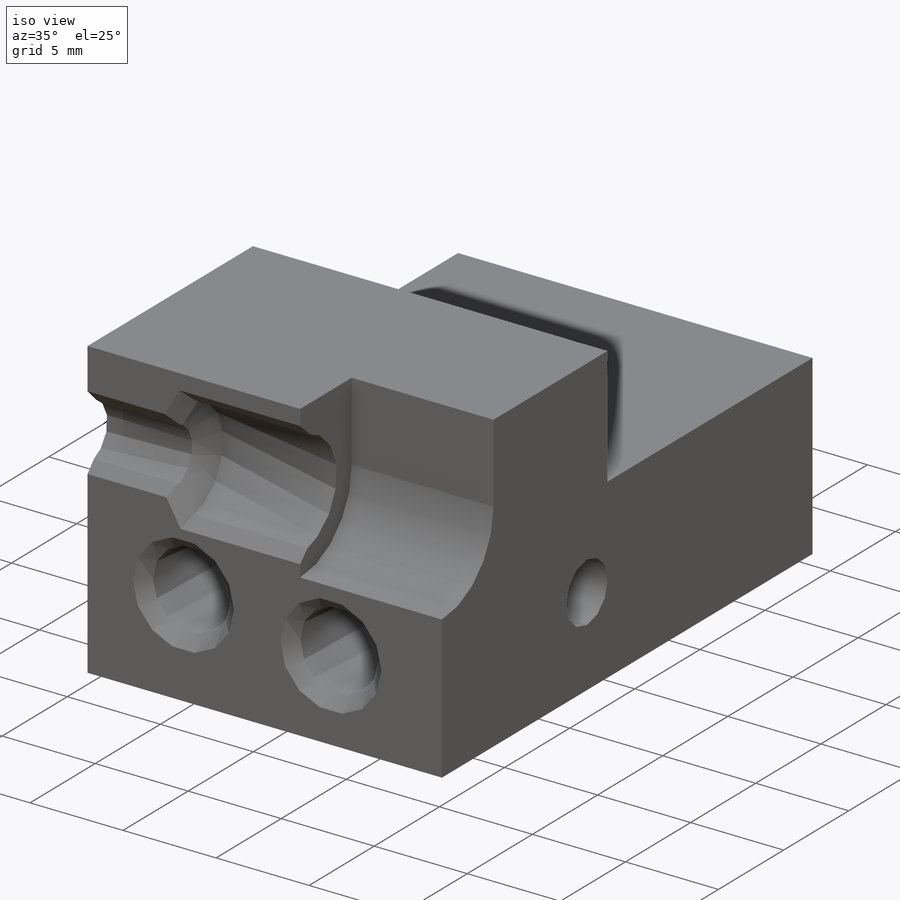
[diagram: iso view]
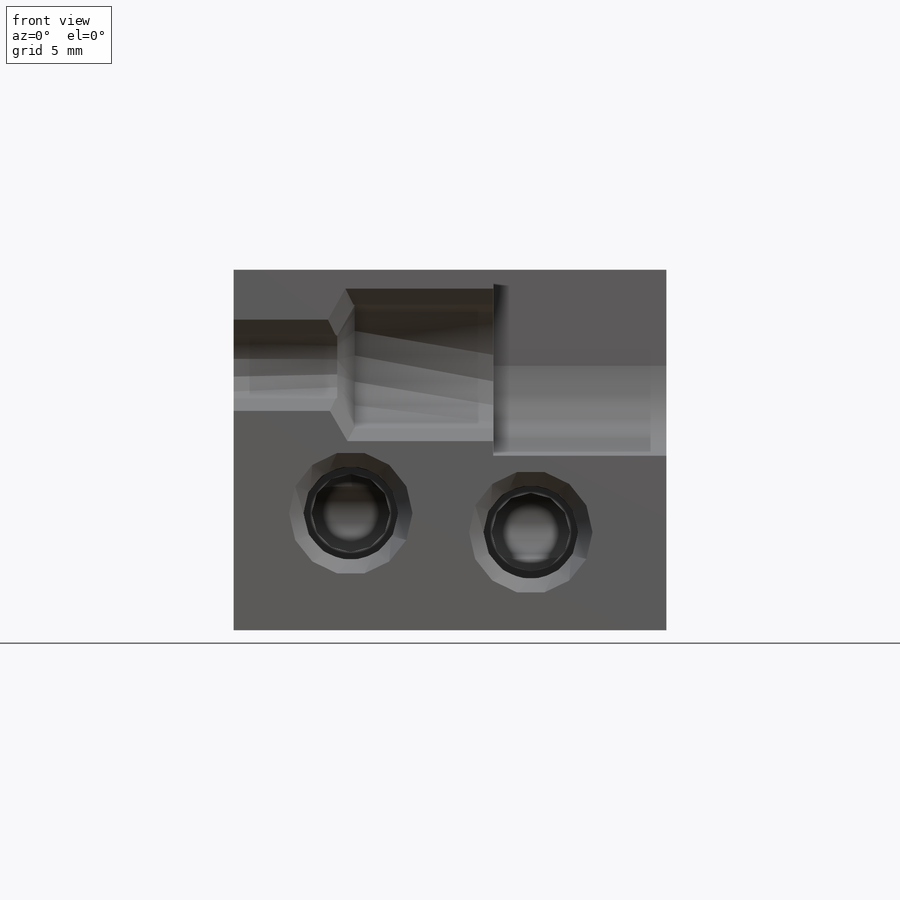
[diagram: front view]
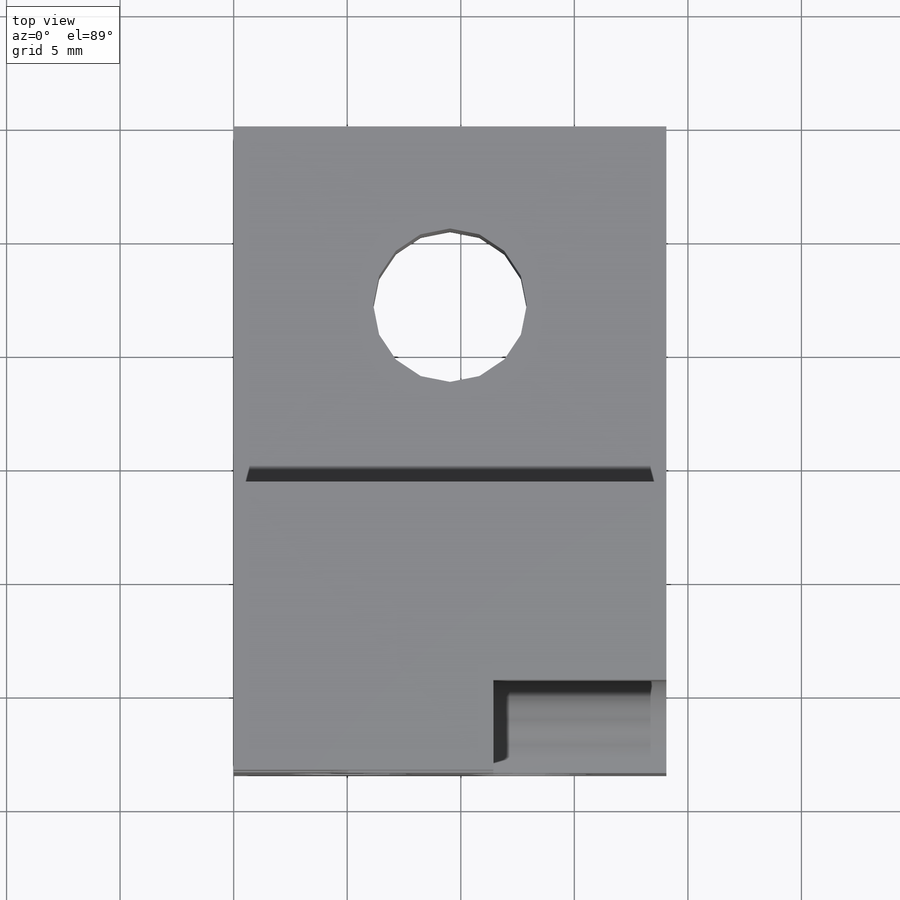
[diagram: top view]
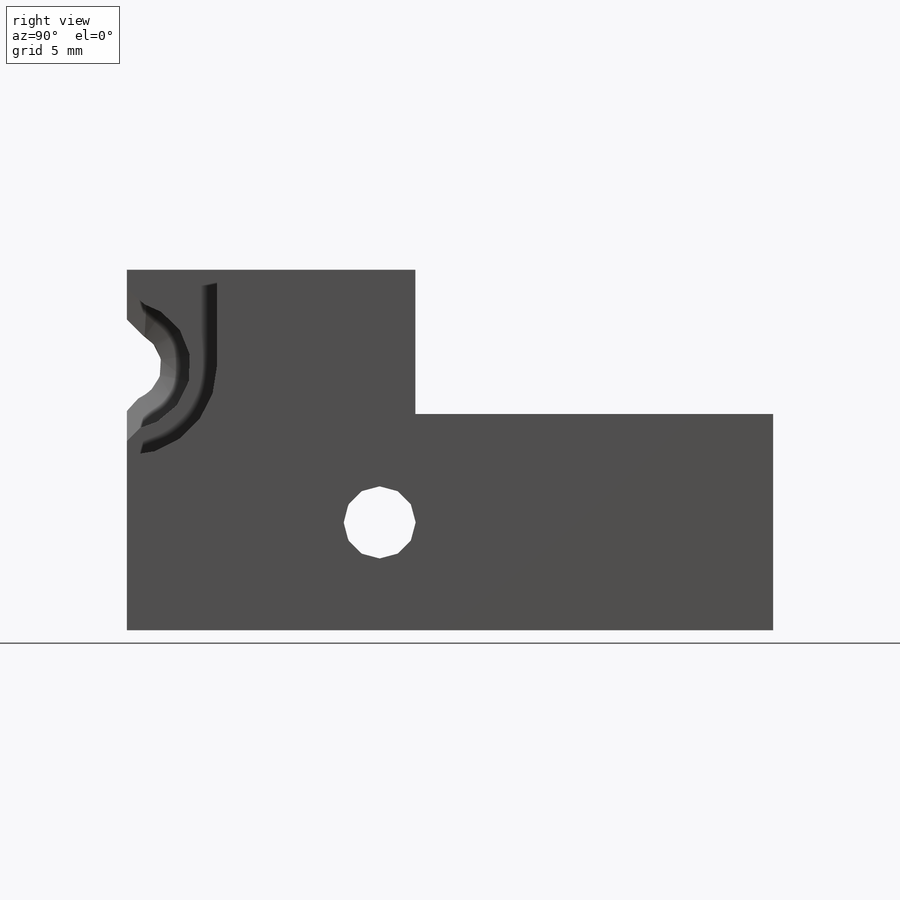
[diagram: right view]
SOLIDWORKS PART (.sldprt)
format: sldprt  version: not decoded by parser v0  size: 390,144 bytes
history: native  units: mm
features: sketch x14, hole x5, cut_extrude x2, material x1, extrude x1, chamfer x1 + 1 further entry (+13 scaffold rows collapsed)
feature tree (38):
  scaffold x13  (default folders/planes/origin — collapsed)
  material  "PEEK"
  "Origin"  ID=-1
  sketch  "Sketch1"  dims[D1=19.05mm D2=15.875mm]
  extrude  "Boss-Extrude1"  Depth=28.448mm
  hole  "#31 (0.12) Diameter Hole1"  Diameter=3.048mm Depth=19.05mm
  sketch  "Sketch3"  dims[D1=~4.22948mm]
  sketch  "Sketch2"  dims[hole-wizard template sketch: 60 standard entries collapsed; hole parameters kept: c18.Thru Hole Depth=19.05mm]
  sketch  "Sketch5"  dims[c1.D1=0.635mm c1.D2=0.635mm c1.D4=0.635mm c1.D5=0.635mm c2.D5=72.0deg c2.D3=5.0]
  sketch  "Sketch6"  dims[D1=15.748mm D2=6.35mm]
  cut_extrude  "Cut-Extrude1"  [1 undecoded]
  hole  "H (0.266) Diameter Hole1"  Diameter=6.7564mm Depth=9.525mm
  sketch  "Sketch8"  dims[D1=20.574mm]
  sketch  "Sketch7"  dims[hole-wizard template sketch: 60 standard entries collapsed; hole parameters kept: c18.Thru Hole Depth=9.525mm]
  sketch  "Sketch9"  dims[D1=7.9248mm]
  cut_extrude  "Cut-Extrude2"  Depth=7.62mm
  hole  "#2 (0.221) Diameter Hole1"  Diameter=5.6134mm Depth=6.096mm
  sketch  "Sketch11"
  sketch  "Sketch10"  dims[hole-wizard template sketch: 47 standard entries collapsed; hole parameters kept: c15.Hole Depth=6.096mm c15.D3=~14.816244mm c15.Drill Angle=118.0deg]
  chamfer  "Chamfer1"  Distance=0.508mm Angle=45deg
  hole  "#8-32 Tapped Hole1"  Diameter=3.4544mm Depth=10.7188mm
  sketch  "Sketch13"  dims[c1.D1=5.1562mm c1.D2=5.1562mm c1.D3=7.9248mm c1.D4=4.318mm c2.D2=0.8382mm]
  sketch  "Sketch12"  dims[hole-wizard template sketch: 26 standard entries collapsed; hole parameters kept: c8.Tap Drill Dia.=3.4544mm c8.Tap Drill Depth=10.7188mm c8.Thread Major Dia.=4.1656mm c8.Thread Depth=8.3312mm c8.Near C'Sink Dia.=5.4356mm c8.D6=~4.399409mm c8.Near C'Sink Angle=90.0deg c8.D7=~14.816244mm c8.Drill Angle=118.0deg]
  hole  "1/8 (0.125) Diameter Hole1"  Diameter=3.175mm Depth=19.05mm
  sketch  "Sketch15"  dims[D1=11.1252mm D2=4.7498mm]
  sketch  "Sketch14"  dims[hole-wizard template sketch: 60 standard entries collapsed; hole parameters kept: c18.Thru Hole Depth=19.05mm]
decode coverage: 21 of 23 modeling features carry decoded parameters; 1 rows unclassified (native names shown)
note: ~ marks probable driven/reference dimensions
note: 1 parameter value undecoded
summary: Diameter pulled from absorbed wizard sketch
note: suppression state not decoded; provenance and decode notes live in map.json
